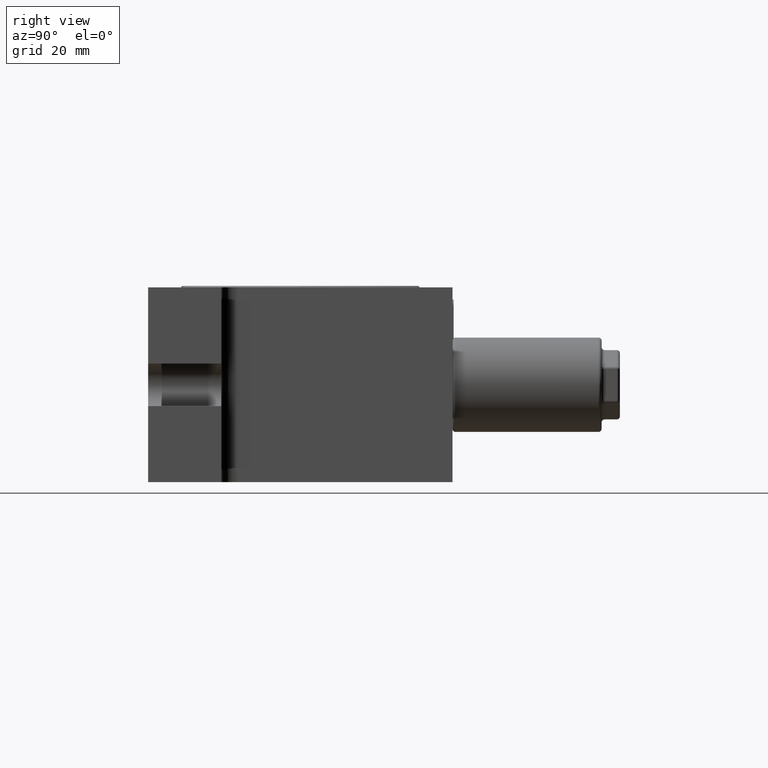
[diagram: clean part render]
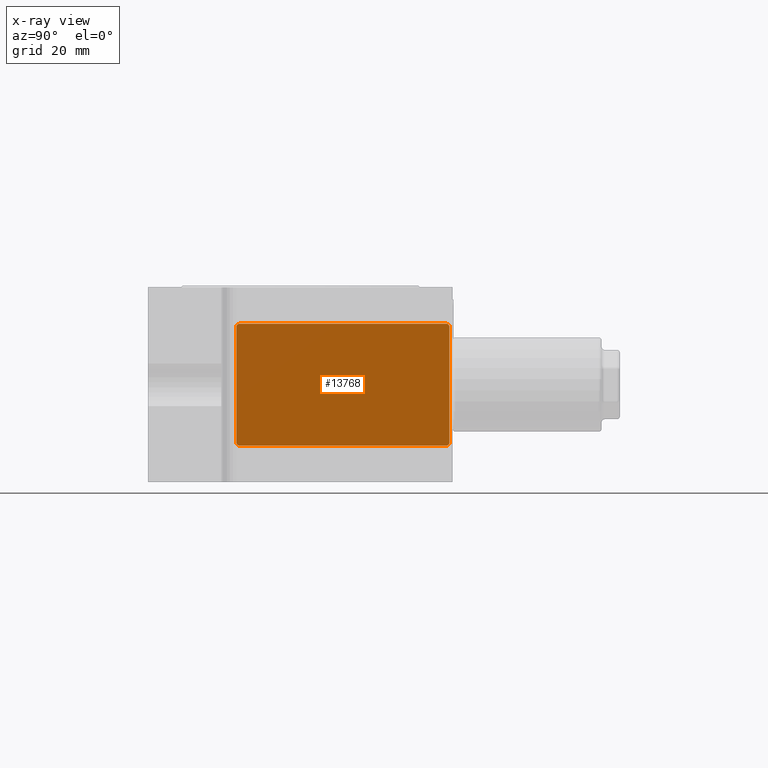
[diagram: x-ray — body ghosted, one internal face saturated and labeled with its STEP entity id]
A machine part, right view, then the same camera in x-ray: the body is ghosted and one INTERNAL B-rep face — a face not visible from any outside direction — is saturated and labeled: STEP entity #13768.
In plain terms, the highlighted planar face has unit normal (1, -0, 0).
Its self-contained STEP definition (entity closure, byte-faithful):
#268 = VECTOR ( 'NONE', #917, 1000.000000000000000 ) ;
#917 = DIRECTION ( 'NONE',  ( -8.668638017432970100E-017, -1.387778780781460000E-016, 1.000000000000000000 ) ) ;
#1168 = CARTESIAN_POINT ( 'NONE',  ( -25.00000000000000700, 23.99999999999999600, -9.499999999999991100 ) ) ;
#1961 = CARTESIAN_POINT ( 'NONE',  ( -25.00000000000000700, 24.49999999999999600, -9.499999999999991100 ) ) ;
#2960 = VERTEX_POINT ( 'NONE', #23570 ) ;
#3036 = ORIENTED_EDGE ( 'NONE', *, *, #7536, .T. ) ;
#3351 = EDGE_CURVE ( 'NONE', #4577, #17940, #19170, .T. ) ;
#3511 = CARTESIAN_POINT ( 'NONE',  ( -25.00000000000009200, 23.99999999999999300, 10.00000000000000000 ) ) ;
#3623 = CARTESIAN_POINT ( 'NONE',  ( -25.00000000000001100, -10.00000000000000500, -9.999999999999976900 ) ) ;
#3706 = PLANE ( 'NONE',  #20563 ) ;
#3752 = AXIS2_PLACEMENT_3D ( 'NONE', #5841, #9877, #8037 ) ;
#4388 = EDGE_CURVE ( 'NONE', #5016, #21462, #23472, .T. ) ;
#4397 = EDGE_CURVE ( 'NONE', #11912, #2960, #17511, .T. ) ;
#4577 = VERTEX_POINT ( 'NONE', #3623 ) ;
#4869 = AXIS2_PLACEMENT_3D ( 'NONE', #6995, #9042, #9128 ) ;
#5016 = VERTEX_POINT ( 'NONE', #9333 ) ;
#5106 = CARTESIAN_POINT ( 'NONE',  ( -25.00000000000000700, 24.49999999999999600, -9.999999999999991100 ) ) ;
#5582 = LINE ( 'NONE', #5106, #268 ) ;
#5841 = CARTESIAN_POINT ( 'NONE',  ( -25.00000000000001100, -10.00000000000000900, 9.500000000000037300 ) ) ;
#5892 = DIRECTION ( 'NONE',  ( -4.255293202505093800E-017, -1.000000000000000000, -5.551115123125639700E-017 ) ) ;
#6657 = ORIENTED_EDGE ( 'NONE', *, *, #7951, .T. ) ;
#6824 = ORIENTED_EDGE ( 'NONE', *, *, #3351, .T. ) ;
#6995 = CARTESIAN_POINT ( 'NONE',  ( -25.00000000000001100, -10.00000000000000500, -9.499999999999976900 ) ) ;
#7178 = CARTESIAN_POINT ( 'NONE',  ( -24.99999999999998900, -10.00000000000000900, 10.00000000000003900 ) ) ;
#7200 = DIRECTION ( 'NONE',  ( 1.000000000000000000, -1.952748220981063200E-016, 6.359540401553604300E-017 ) ) ;
#7401 = CARTESIAN_POINT ( 'NONE',  ( -25.00000000000001100, -10.50000000000000500, -9.999999999999976900 ) ) ;
#7489 = CIRCLE ( 'NONE', #4869, 0.5000000000000004400 ) ;
#7536 = EDGE_CURVE ( 'NONE', #11912, #4577, #7489, .T. ) ;
#7925 = EDGE_CURVE ( 'NONE', #24662, #5016, #5582, .T. ) ;
#7951 = EDGE_CURVE ( 'NONE', #17940, #24662, #24666, .T. ) ;
#8037 = DIRECTION ( 'NONE',  ( 0.0000000000000000000, -1.000000000000000000, 0.0000000000000000000 ) ) ;
#8254 = VECTOR ( 'NONE', #20415, 1000.000000000000000 ) ;
#9042 = DIRECTION ( 'NONE',  ( 1.000000000000000000, -1.952748220981063200E-016, 6.359540401553604300E-017 ) ) ;
#9128 = DIRECTION ( 'NONE',  ( 0.0000000000000000000, -1.000000000000000000, 0.0000000000000000000 ) ) ;
#9333 = CARTESIAN_POINT ( 'NONE',  ( -25.00000000000001100, 24.49999999999999300, 9.499999999999950300 ) ) ;
#9348 = DIRECTION ( 'NONE',  ( 4.255293202505093800E-017, 1.000000000000000000, 5.551115123125639700E-017 ) ) ;
#9877 = DIRECTION ( 'NONE',  ( 1.000000000000000000, -1.952748220981063200E-016, 6.359540401553604300E-017 ) ) ;
#11266 = VECTOR ( 'NONE', #25500, 1000.000000000000000 ) ;
#11487 = DIRECTION ( 'NONE',  ( 1.000000000000000000, -1.952748220981063200E-016, 6.359540401553604300E-017 ) ) ;
#11912 = VERTEX_POINT ( 'NONE', #23091 ) ;
#13197 = ORIENTED_EDGE ( 'NONE', *, *, #4397, .F. ) ;
#13768 = ADVANCED_FACE ( 'NONE', ( #20956 ), #3706, .T. ) ;
#13814 = ORIENTED_EDGE ( 'NONE', *, *, #7925, .T. ) ;
#14106 = EDGE_LOOP ( 'NONE', ( #19977, #14700, #13197, #3036, #6824, #6657, #13814, #23399 ) ) ;
#14700 = ORIENTED_EDGE ( 'NONE', *, *, #25396, .T. ) ;
#14731 = AXIS2_PLACEMENT_3D ( 'NONE', #1168, #7200, #25230 ) ;
#15406 = CARTESIAN_POINT ( 'NONE',  ( -25.00000000000001100, -10.50000000000000500, -9.999999999999976900 ) ) ;
#16357 = LINE ( 'NONE', #18480, #8254 ) ;
#17267 = CARTESIAN_POINT ( 'NONE',  ( -25.00000000000001100, 23.99999999999999300, 9.500000000000014200 ) ) ;
#17511 = LINE ( 'NONE', #15406, #11266 ) ;
#17865 = CARTESIAN_POINT ( 'NONE',  ( -25.00000000000001100, -10.50000000000000500, -9.999999999999976900 ) ) ;
#17940 = VERTEX_POINT ( 'NONE', #24845 ) ;
#18480 = CARTESIAN_POINT ( 'NONE',  ( -25.00000000000009200, -10.50000000000000900, 10.00000000000003900 ) ) ;
#19170 = LINE ( 'NONE', #7401, #24830 ) ;
#19883 = VERTEX_POINT ( 'NONE', #7178 ) ;
#19977 = ORIENTED_EDGE ( 'NONE', *, *, #24702, .F. ) ;
#20415 = DIRECTION ( 'NONE',  ( 4.255293202505093800E-017, 1.000000000000000000, 5.551115123125639700E-017 ) ) ;
#20563 = AXIS2_PLACEMENT_3D ( 'NONE', #17865, #23936, #5892 ) ;
#20956 = FACE_OUTER_BOUND ( 'NONE', #14106, .T. ) ;
#21462 = VERTEX_POINT ( 'NONE', #3511 ) ;
#23091 = CARTESIAN_POINT ( 'NONE',  ( -25.00000000000001100, -10.50000000000000500, -9.499999999999976900 ) ) ;
#23399 = ORIENTED_EDGE ( 'NONE', *, *, #4388, .T. ) ;
#23472 = CIRCLE ( 'NONE', #23951, 0.5000000000000004400 ) ;
#23570 = CARTESIAN_POINT ( 'NONE',  ( -25.00000000000011400, -10.50000000000000900, 9.500000000000010700 ) ) ;
#23583 = DIRECTION ( 'NONE',  ( 0.0000000000000000000, -1.000000000000000000, 0.0000000000000000000 ) ) ;
#23936 = DIRECTION ( 'NONE',  ( 1.000000000000000000, -4.255293202505094400E-017, 6.359540401553604300E-017 ) ) ;
#23951 = AXIS2_PLACEMENT_3D ( 'NONE', #17267, #11487, #23583 ) ;
#24662 = VERTEX_POINT ( 'NONE', #1961 ) ;
#24666 = CIRCLE ( 'NONE', #14731, 0.5000000000000004400 ) ;
#24702 = EDGE_CURVE ( 'NONE', #19883, #21462, #16357, .T. ) ;
#24803 = CIRCLE ( 'NONE', #3752, 0.5000000000000004400 ) ;
#24830 = VECTOR ( 'NONE', #9348, 1000.000000000000000 ) ;
#24845 = CARTESIAN_POINT ( 'NONE',  ( -25.00000000000000700, 23.99999999999999600, -9.999999999999991100 ) ) ;
#25230 = DIRECTION ( 'NONE',  ( 0.0000000000000000000, -1.000000000000000000, 0.0000000000000000000 ) ) ;
#25396 = EDGE_CURVE ( 'NONE', #19883, #2960, #24803, .T. ) ;
#25500 = DIRECTION ( 'NONE',  ( -8.668638017432970100E-017, -1.387778780781460000E-016, 1.000000000000000000 ) ) ;